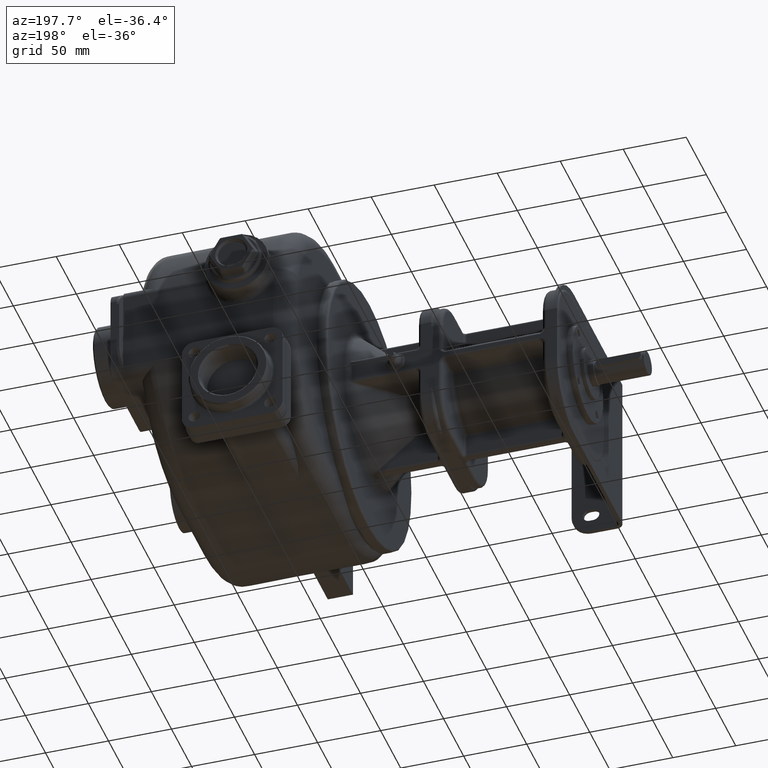
[diagram: clean part render]
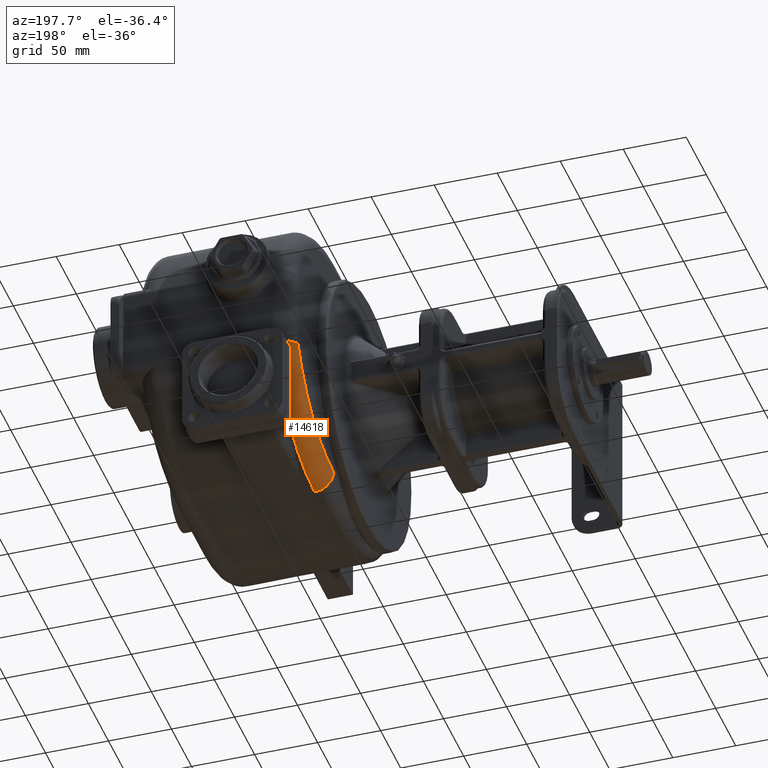
[diagram: same view with one face highlighted and labeled with its STEP entity id]
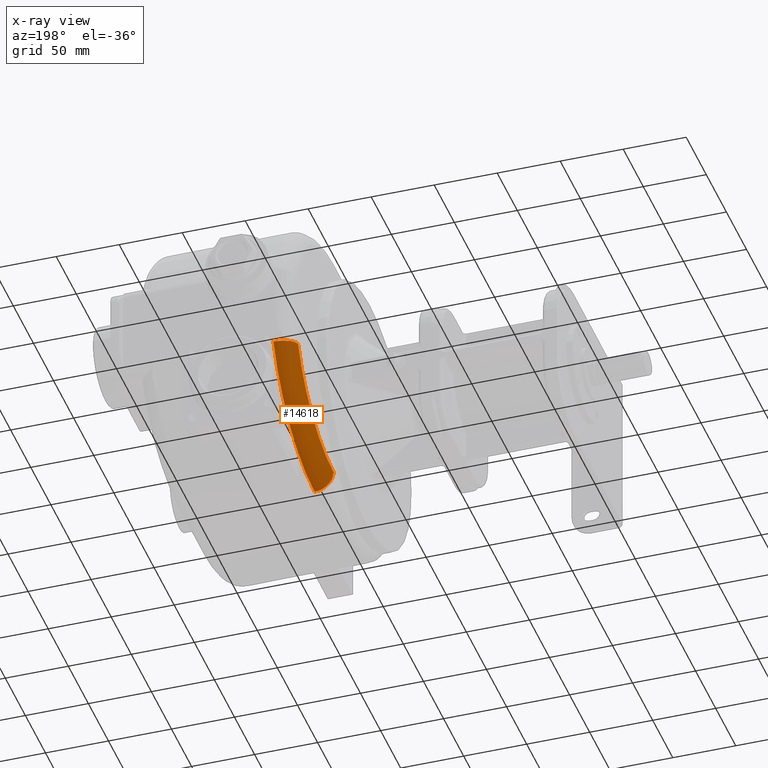
[diagram: x-ray of the same camera — body ghosted, the highlighted face saturated]
A machine part, auxiliary view. The second image highlights one B-rep face of the part: STEP entity #14618.
The next image is the same camera in x-ray: the body ghosted, the highlighted face saturated — about 0% of this face is hidden behind the body in this view.
In plain terms, the highlighted toroidal blend (fillet) surface has major radius 96 mm and minor (blend) radius 15 mm.
Its self-contained STEP definition (entity closure, byte-faithful):
#947=CARTESIAN_POINT('',(-3.5E1,1.736689976975E2,0.E0));
#948=DIRECTION('',(-1.E0,0.E0,0.E0));
#949=DIRECTION('',(0.E0,9.255438126379E-1,-3.786405299062E-1));
#950=AXIS2_PLACEMENT_3D('',#947,#948,#949);
#984=CARTESIAN_POINT('',(-5.E1,1.736689976975E2,0.E0));
#985=DIRECTION('',(-1.E0,0.E0,0.E0));
#986=DIRECTION('',(0.E0,9.201154410071E-1,-3.916472586656E-1));
#987=AXIS2_PLACEMENT_3D('',#984,#985,#986);
#1354=CARTESIAN_POINT('',(-5.E1,2.620000000016E2,-3.759826933642E1));
#1355=CARTESIAN_POINT('',(-4.999990184404E1,2.621801567447E2,
-3.765523034785E1));
#1356=CARTESIAN_POINT('',(-4.999296623263E1,2.625398621720E2,
-3.777034978896E1));
#1357=CARTESIAN_POINT('',(-4.996116665432E1,2.630787151086E2,
-3.793988160947E1));
#1358=CARTESIAN_POINT('',(-4.990842470709E1,2.636153412558E2,
-3.810924988021E1));
#1359=CARTESIAN_POINT('',(-4.983476777166E1,2.641493804888E2,
-3.827737145033E1));
#1360=CARTESIAN_POINT('',(-4.974034641275E1,2.646801827E2,-3.844424049159E1));
#1361=CARTESIAN_POINT('',(-4.962528697941E1,2.652071732534E2,
-3.860958958539E1));
#1362=CARTESIAN_POINT('',(-4.948972659099E1,2.657298202236E2,
-3.877311666144E1));
#1363=CARTESIAN_POINT('',(-4.933383267760E1,2.662474966946E2,
-3.893450824153E1));
#1364=CARTESIAN_POINT('',(-4.915779653689E1,2.667594737404E2,
-3.909368447001E1));
#1365=CARTESIAN_POINT('',(-4.896183020124E1,2.672650463099E2,
-3.925050276238E1));
#1366=CARTESIAN_POINT('',(-4.874623881799E1,2.677633551275E2,
-3.940478068994E1));
#1367=CARTESIAN_POINT('',(-4.851137030001E1,2.682535641316E2,
-3.955634743819E1));
#1368=CARTESIAN_POINT('',(-4.825761906500E1,2.687348807676E2,
-3.970496943413E1));
#1369=CARTESIAN_POINT('',(-4.798532947618E1,2.692067883077E2,
-3.985022819327E1));
#1370=CARTESIAN_POINT('',(-4.769484000866E1,2.696686656094E2,
-3.999206953361E1));
#1371=CARTESIAN_POINT('',(-4.738651054038E1,2.701199175602E2,
-4.013035357801E1));
#1372=CARTESIAN_POINT('',(-4.706081356232E1,2.705598236102E2,
-4.026492037003E1));
#1373=CARTESIAN_POINT('',(-4.671825588204E1,2.709876931279E2,
-4.039560524567E1));
#1374=CARTESIAN_POINT('',(-4.635937326821E1,2.714028669877E2,
-4.052224588906E1));
#1375=CARTESIAN_POINT('',(-4.598468085186E1,2.718048410541E2,
-4.064451881823E1));
#1376=CARTESIAN_POINT('',(-4.559471050721E1,2.721930266272E2,
-4.076236473870E1));
#1377=CARTESIAN_POINT('',(-4.519001792877E1,2.725668739522E2,
-4.087567375841E1));
#1378=CARTESIAN_POINT('',(-4.477118331422E1,2.729258486833E2,
-4.098434380873E1));
#1379=CARTESIAN_POINT('',(-4.433880660251E1,2.732694476653E2,
-4.108825619160E1));
#1380=CARTESIAN_POINT('',(-4.389350147963E1,2.735971891056E2,
-4.118731341161E1));
#1381=CARTESIAN_POINT('',(-4.343584730169E1,2.739087325835E2,
-4.128122780151E1));
#1382=CARTESIAN_POINT('',(-4.296642676331E1,2.742036518961E2,
-4.136997377727E1));
#1383=CARTESIAN_POINT('',(-4.248583958569E1,2.744815459698E2,
-4.145349115588E1));
#1384=CARTESIAN_POINT('',(-4.199480259575E1,2.747419786590E2,
-4.153170097804E1));
#1385=CARTESIAN_POINT('',(-4.149405090101E1,2.749845566509E2,
-4.160450966753E1));
#1386=CARTESIAN_POINT('',(-4.098433509059E1,2.752089166037E2,
-4.167183892535E1));
#1387=CARTESIAN_POINT('',(-4.046641630621E1,2.754147814093E2,
-4.173349499687E1));
#1388=CARTESIAN_POINT('',(-3.994105516828E1,2.756018477567E2,
-4.178944834482E1));
#1389=CARTESIAN_POINT('',(-3.940902843979E1,2.757698474611E2,
-4.183966742787E1));
#1390=CARTESIAN_POINT('',(-3.887102360461E1,2.759185769660E2,
-4.188412052670E1));
#1391=CARTESIAN_POINT('',(-3.832773639278E1,2.760478585450E2,
-4.192275986574E1));
#1392=CARTESIAN_POINT('',(-3.777985083141E1,2.761575362017E2,
-4.195553943896E1));
#1393=CARTESIAN_POINT('',(-3.722811908690E1,2.762474961888E2,
-4.198234410522E1));
#1394=CARTESIAN_POINT('',(-3.667321307483E1,2.763175896079E2,
-4.200319580471E1));
#1395=CARTESIAN_POINT('',(-3.611636258590E1,2.763676888590E2,
-4.201810969801E1));
#1396=CARTESIAN_POINT('',(-3.555675366520E1,2.763977603145E2,
-4.202710195868E1));
#1397=CARTESIAN_POINT('',(-3.518640725181E1,2.764043398872E2,
-4.202908413827E1));
#1398=CARTESIAN_POINT('',(-3.499914600539E1,2.764043357399E2,
-4.202909432324E1));
#1984=CARTESIAN_POINT('',(-3.5E1,1.736689976975E2,-9.6E1));
#1985=DIRECTION('',(0.E0,-1.E0,0.E0));
#1986=DIRECTION('',(-1.E0,0.E0,0.E0));
#1987=AXIS2_PLACEMENT_3D('',#1984,#1985,#1986);
#11730=CARTESIAN_POINT('',(-5.E1,2.620000000016E2,-3.759826933642E1));
#11732=VERTEX_POINT('',#11730);
#11733=CARTESIAN_POINT('',(-5.E1,1.736689976975E2,-9.6E1));
#11734=VERTEX_POINT('',#11733);
#11735=CARTESIAN_POINT('',(-3.5E1,2.764043609003E2,-4.202909881958E1));
#11736=CARTESIAN_POINT('',(-3.5E1,1.736689976975E2,-1.11E2));
#11737=VERTEX_POINT('',#11735);
#11738=VERTEX_POINT('',#11736);
#14604=CARTESIAN_POINT('',(-3.5E1,1.736689976975E2,0.E0));
#14605=DIRECTION('',(-1.E0,0.E0,0.E0));
#14606=DIRECTION('',(0.E0,-5.561520732977E-1,8.310805444521E-1));
#14607=AXIS2_PLACEMENT_3D('',#14604,#14605,#14606);
#14608=TOROIDAL_SURFACE('',#14607,9.6E1,1.5E1);
#14610=ORIENTED_EDGE('',*,*,#14609,.T.);
#14612=ORIENTED_EDGE('',*,*,#14611,.T.);
#14613=ORIENTED_EDGE('',*,*,#14583,.F.);
#14615=ORIENTED_EDGE('',*,*,#14614,.F.);
#14616=EDGE_LOOP('',(#14610,#14612,#14613,#14615));
#14617=FACE_OUTER_BOUND('',#14616,.F.);
#14618=ADVANCED_FACE('',(#14617),#14608,.T.);
#951=CIRCLE('',#950,1.11E2);
#988=CIRCLE('',#987,9.6E1);
#1399=B_SPLINE_CURVE_WITH_KNOTS('',3,(#1354,#1355,#1356,#1357,#1358,#1359,#1360,
#1361,#1362,#1363,#1364,#1365,#1366,#1367,#1368,#1369,#1370,#1371,#1372,#1373,
#1374,#1375,#1376,#1377,#1378,#1379,#1380,#1381,#1382,#1383,#1384,#1385,#1386,
#1387,#1388,#1389,#1390,#1391,#1392,#1393,#1394,#1395,#1396,#1397,#1398),
.UNSPECIFIED.,.F.,.F.,(4,1,1,1,1,1,1,1,1,1,1,1,1,1,1,1,1,1,1,1,1,1,1,1,1,1,1,1,
1,1,1,1,1,1,1,1,1,1,1,1,1,1,4),(0.E0,2.380952380952E-2,4.761904761905E-2,
7.142857142857E-2,9.523809523810E-2,1.190476190476E-1,1.428571428571E-1,
1.666666666667E-1,1.904761904762E-1,2.142857142857E-1,2.380952380952E-1,
2.619047619048E-1,2.857142857143E-1,3.095238095238E-1,3.333333333333E-1,
3.571428571429E-1,3.809523809524E-1,4.047619047619E-1,4.285714285714E-1,
4.523809523810E-1,4.761904761905E-1,5.E-1,5.238095238095E-1,5.476190476190E-1,
5.714285714286E-1,5.952380952381E-1,6.190476190476E-1,6.428571428571E-1,
6.666666666667E-1,6.904761904762E-1,7.142857142857E-1,7.380952380952E-1,
7.619047619048E-1,7.857142857143E-1,8.095238095238E-1,8.333333333333E-1,
8.571428571429E-1,8.809523809524E-1,9.047619047619E-1,9.285714285714E-1,
9.523809523810E-1,9.761904761905E-1,1.E0),.UNSPECIFIED.);
#1988=CIRCLE('',#1987,1.5E1);
#14583=EDGE_CURVE('',#11737,#11738,#951,.T.);
#14609=EDGE_CURVE('',#11732,#11734,#988,.T.);
#14611=EDGE_CURVE('',#11734,#11738,#1988,.T.);
#14614=EDGE_CURVE('',#11732,#11737,#1399,.T.);